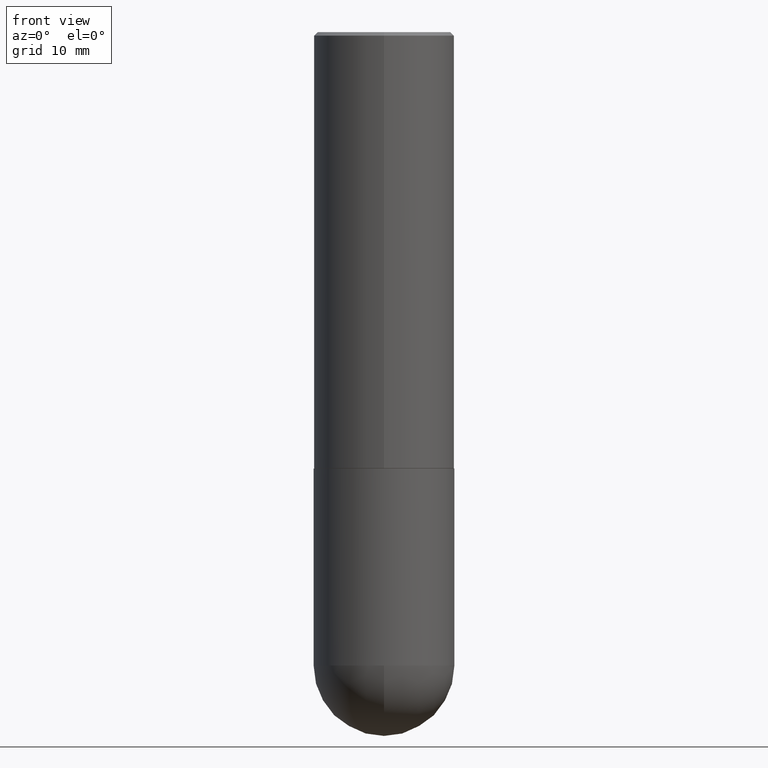
[diagram: clean part render]
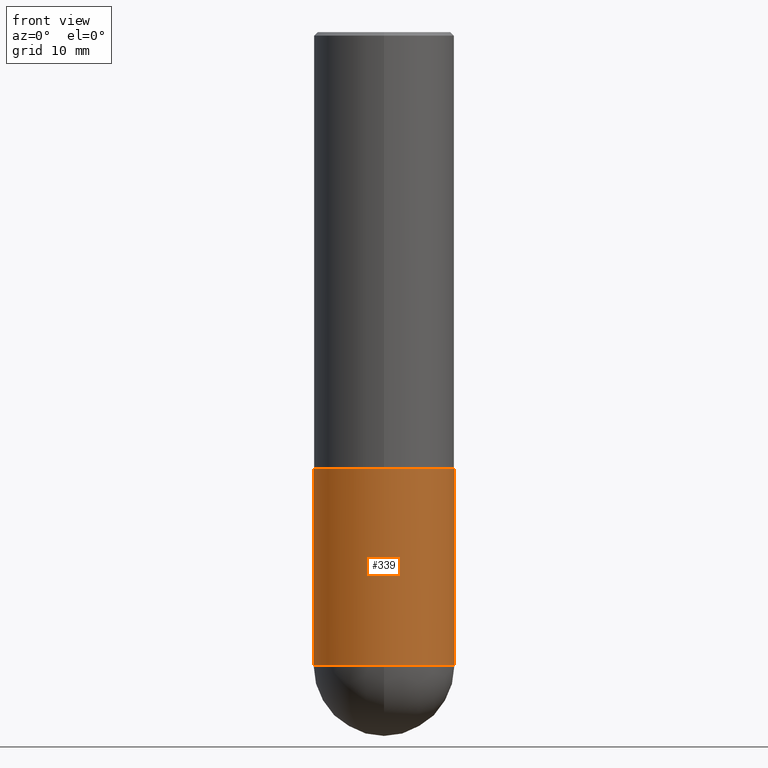
[diagram: same view with one face highlighted and labeled with its STEP entity id]
A machine part, front view. The second image highlights one B-rep face of the part: STEP entity #339.
In plain terms, the highlighted cylindrical surface (partial cylindrical patch) has radius 10 mm, axis along (-0, 0, 1).
Its self-contained STEP definition (entity closure, byte-faithful):
#12 = EDGE_CURVE ( 'NONE', #219, #132, #209, .T. ) ;
#28 = CARTESIAN_POINT ( 'NONE',  ( -0.3937000000000000499, -7.649454563265061811E-15, -2.440900000000000070 ) ) ;
#31 = ORIENTED_EDGE ( 'NONE', *, *, #12, .T. ) ;
#45 = CARTESIAN_POINT ( 'NONE',  ( 0.3937000000000001054, -1.319605372015766376E-14, -3.543299999999999450 ) ) ;
#46 = VERTEX_POINT ( 'NONE', #45 ) ;
#53 = CARTESIAN_POINT ( 'NONE',  ( -0.3937000000000001054, -7.649454563265064966E-15, -3.543299999999999450 ) ) ;
#66 = CARTESIAN_POINT ( 'NONE',  ( 0.3937000000000001054, -2.749192406205084005E-15, 1.919750796630860452E-29 ) ) ;
#67 = CARTESIAN_POINT ( 'NONE',  ( 0.000000000000000000, 0.000000000000000000, 0.000000000000000000 ) ) ;
#70 = DIRECTION ( 'NONE',  ( -2.445468806185136597E-29, 3.491481338843145583E-15, 1.000000000000000000 ) ) ;
#71 = DIRECTION ( 'NONE',  ( 1.000000000000000000, -6.982962677686266711E-15, 0.000000000000000000 ) ) ;
#72 = DIRECTION ( 'NONE',  ( 1.000000000000000000, -6.982962677686266711E-15, 0.000000000000000000 ) ) ;
#95 = DIRECTION ( 'NONE',  ( 1.000000000000000000, -6.982962677686266711E-15, 4.876176775795935793E-29 ) ) ;
#98 = EDGE_CURVE ( 'NONE', #183, #236, #134, .T. ) ;
#104 = DIRECTION ( 'NONE',  ( -2.445468806185136597E-29, 3.491481338843145583E-15, 1.000000000000000000 ) ) ;
#107 = CIRCLE ( 'NONE', #228, 0.3937000000000001054 ) ;
#118 = LINE ( 'NONE', #185, #127 ) ;
#127 = VECTOR ( 'NONE', #159, 39.37007874015748143 ) ;
#130 = DIRECTION ( 'NONE',  ( -2.445468806185136877E-29, 3.491481338843145188E-15, 1.000000000000000000 ) ) ;
#132 = VERTEX_POINT ( 'NONE', #254 ) ;
#134 = CIRCLE ( 'NONE', #297, 0.3937000000000000499 ) ;
#150 = CARTESIAN_POINT ( 'NONE',  ( 5.969144809017300159E-29, -8.522356799982234543E-15, -2.440900000000000070 ) ) ;
#153 = AXIS2_PLACEMENT_3D ( 'NONE', #388, #357, #71 ) ;
#156 = ORIENTED_EDGE ( 'NONE', *, *, #98, .F. ) ;
#158 = ORIENTED_EDGE ( 'NONE', *, *, #164, .F. ) ;
#159 = DIRECTION ( 'NONE',  ( -2.445468806185136877E-29, 3.491481338843145188E-15, 1.000000000000000000 ) ) ;
#164 = EDGE_CURVE ( 'NONE', #219, #183, #118, .T. ) ;
#173 = EDGE_LOOP ( 'NONE', ( #158, #31, #265, #250, #156 ) ) ;
#183 = VERTEX_POINT ( 'NONE', #28 ) ;
#185 = CARTESIAN_POINT ( 'NONE',  ( -0.3937000000000001054, 2.797406750687515181E-15, -1.936584745033357016E-29 ) ) ;
#200 = CYLINDRICAL_SURFACE ( 'NONE', #240, 0.3937000000000001054 ) ;
#209 = CIRCLE ( 'NONE', #153, 0.3937000000000001054 ) ;
#219 = VERTEX_POINT ( 'NONE', #53 ) ;
#226 = CARTESIAN_POINT ( 'NONE',  ( 8.665029620955792948E-29, -1.237136582792291707E-14, -3.543299999999999450 ) ) ;
#228 = AXIS2_PLACEMENT_3D ( 'NONE', #226, #104, #72 ) ;
#236 = VERTEX_POINT ( 'NONE', #406 ) ;
#240 = AXIS2_PLACEMENT_3D ( 'NONE', #67, #70, #95 ) ;
#250 = ORIENTED_EDGE ( 'NONE', *, *, #279, .T. ) ;
#254 = CARTESIAN_POINT ( 'NONE',  ( -2.797406750687430773E-15, -0.3937000000000128175, -3.543299999999997674 ) ) ;
#265 = ORIENTED_EDGE ( 'NONE', *, *, #332, .T. ) ;
#279 = EDGE_CURVE ( 'NONE', #46, #236, #299, .T. ) ;
#297 = AXIS2_PLACEMENT_3D ( 'NONE', #150, #412, #340 ) ;
#299 = LINE ( 'NONE', #66, #380 ) ;
#332 = EDGE_CURVE ( 'NONE', #132, #46, #107, .T. ) ;
#339 = ADVANCED_FACE ( 'NONE', ( #350 ), #200, .T. ) ;
#340 = DIRECTION ( 'NONE',  ( 1.000000000000000000, -6.982962677686267499E-15, 0.000000000000000000 ) ) ;
#350 = FACE_OUTER_BOUND ( 'NONE', #173, .T. ) ;
#357 = DIRECTION ( 'NONE',  ( -2.445468806185136597E-29, 3.491481338843145583E-15, 1.000000000000000000 ) ) ;
#380 = VECTOR ( 'NONE', #130, 39.37007874015748143 ) ;
#388 = CARTESIAN_POINT ( 'NONE',  ( 8.665029620955792948E-29, -1.237136582792291707E-14, -3.543299999999999450 ) ) ;
#406 = CARTESIAN_POINT ( 'NONE',  ( 0.3937000000000000499, -1.127154920618731776E-14, -2.440900000000000070 ) ) ;
#412 = DIRECTION ( 'NONE',  ( -2.445468806185136597E-29, 3.491481338843145583E-15, 1.000000000000000000 ) ) ;